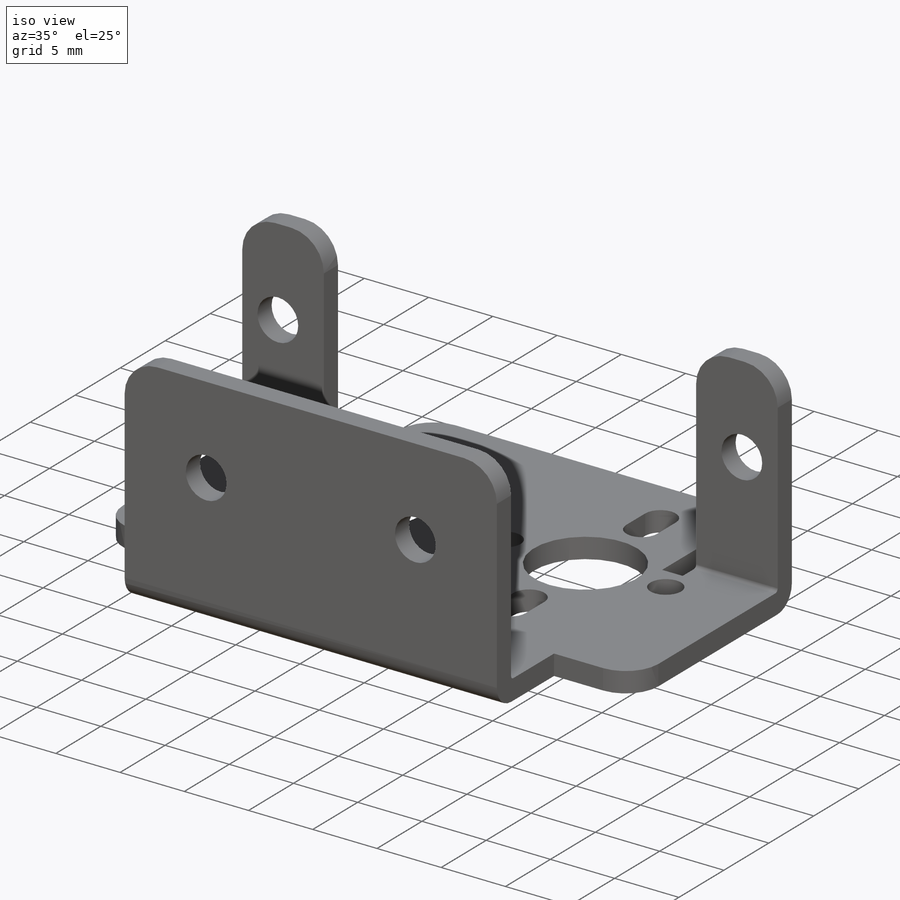
[diagram: iso view]
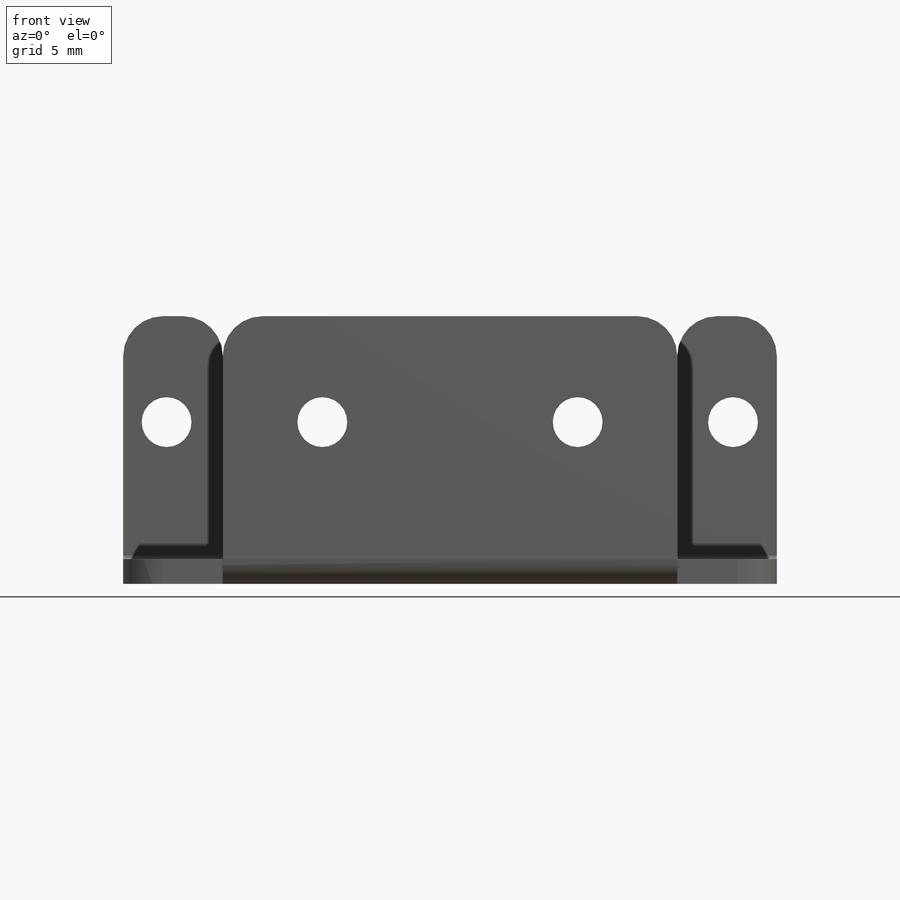
[diagram: front view]
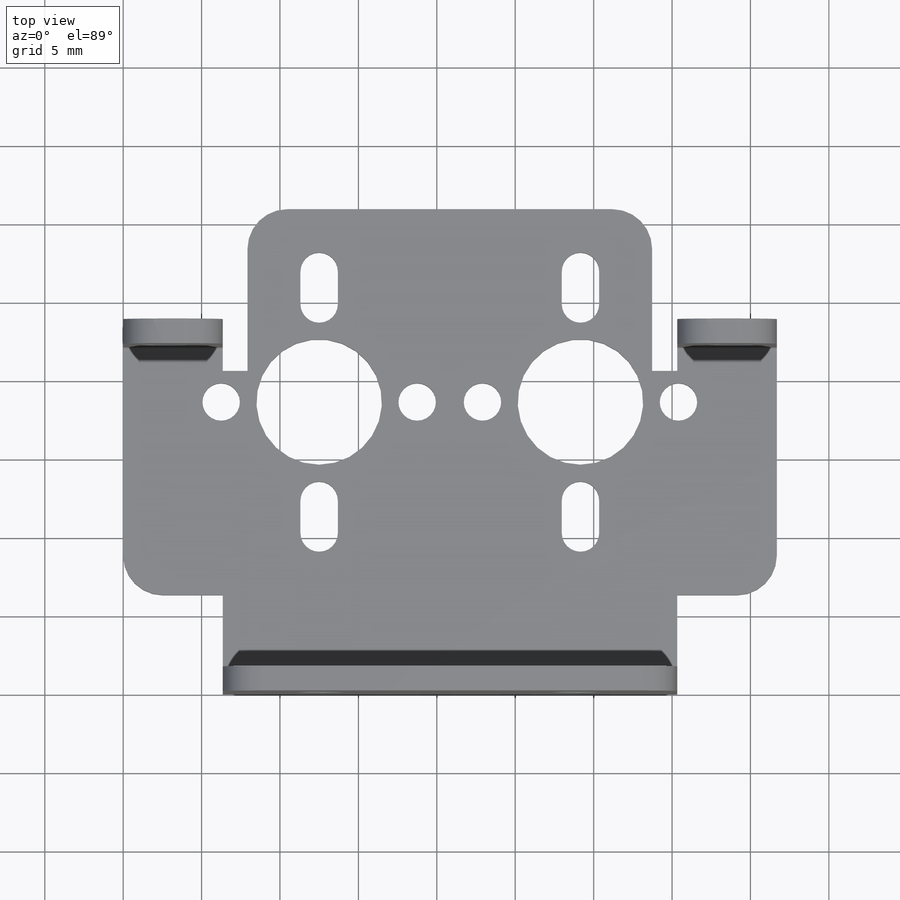
[diagram: top view]
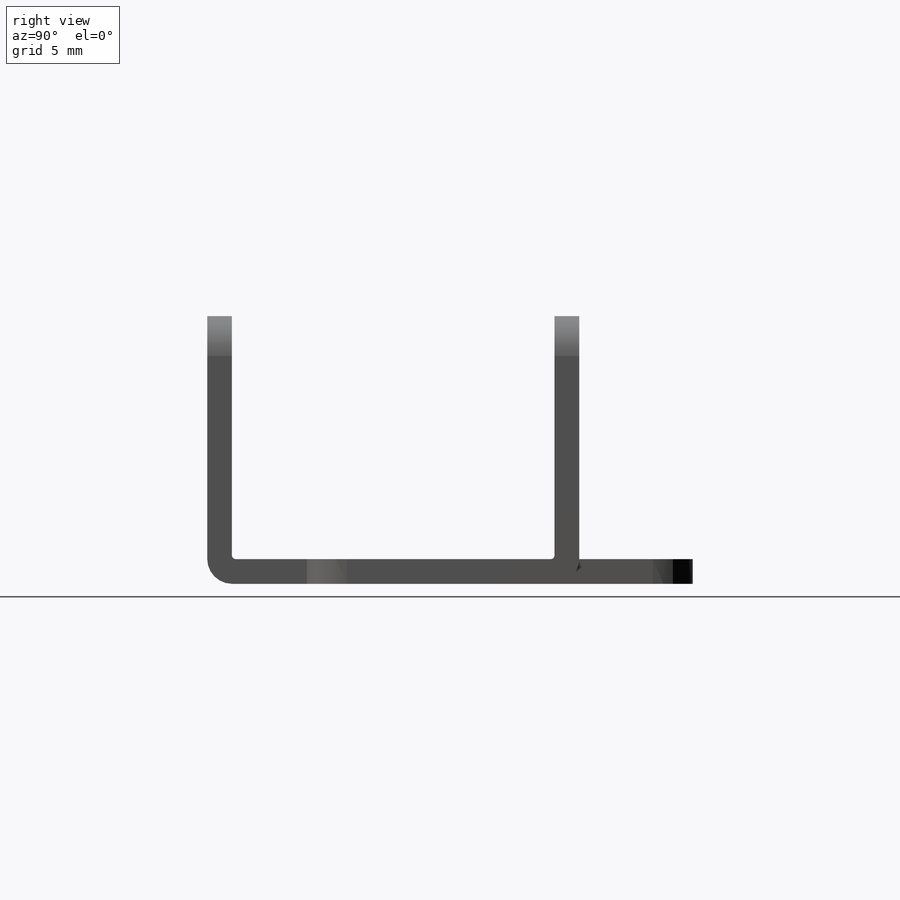
[diagram: right view]
SOLIDWORKS PART (.sldprt)
format: sldprt  version: not decoded by parser v0  size: 393,728 bytes
history: native  units: mm
features: sketch x8, cut_extrude x7, fillet x3, material x1, extrude x1 (+16 scaffold rows collapsed)
feature tree (36):
  scaffold x16  (default folders/planes/origin — collapsed)
  material  "Material <not specified>"
  sketch  "Sketch1"  dims[D1=17.0688mm D2=30.9626mm]
  extrude  "Extrude1"  Depth=41.6814mm
  sketch  "Sketch3"  dims[D1=1.5748mm D2=1.5748mm D3=1.5748mm D4=23.7236mm]
  cut_extrude  "Extrude2"  [1 undecoded]
  sketch  "Sketch4"  dims[D1=6.35mm D2=6.35mm]
  cut_extrude  "Extrude3"  Depth=6.35mm
  sketch  "Sketch5"  dims[D1=6.35mm D2=6.35mm]
  cut_extrude  "Extrude4"  [1 undecoded]
  sketch  "Sketch6"
  cut_extrude  "Extrude5"  [1 undecoded]
  sketch  "Sketch7"  dims[D1=7.9502mm D2=33.7566mm]
  cut_extrude  "Extrude6"  Depth=10.3124mm
  fillet  "Fillet1"  Radius=1.5875mm
  fillet  "Fillet2"  Radius=0.254mm
  sketch  "Sketch8"  dims[c1.D1=~2.589414mm c1.D3=~0.66202mm c1.D4=2.3876mm c1.D6=2.3876mm c1.D10=2.3876mm c1.D11=2.3876mm c2.D1=12.4968mm c2.D2=18.669mm c2.D3=18.7452mm c2.D5=24.9174mm c2.D7=27.0002mm c2.D8=12.3952mm c2.D9=10.3124mm]
  cut_extrude  "Extrude7"  [1 undecoded]
  sketch  "Sketch9"  dims[D1=3.175mm D2=3.175mm D3=3.175mm D4=3.175mm D5=10.3124mm D6=2.7686mm D7=12.7mm D8=28.9814mm D9=38.8874mm]
  cut_extrude  "Extrude9"  [1 undecoded]
  fillet  "Fillet3"  Radius=2.54mm
decode coverage: 13 of 19 modeling features carry decoded parameters
note: ~ marks probable driven/reference dimensions
note: 5 parameter values undecoded
summary: no parameter record found for 5 features
note: suppression state not decoded; provenance and decode notes live in map.json
